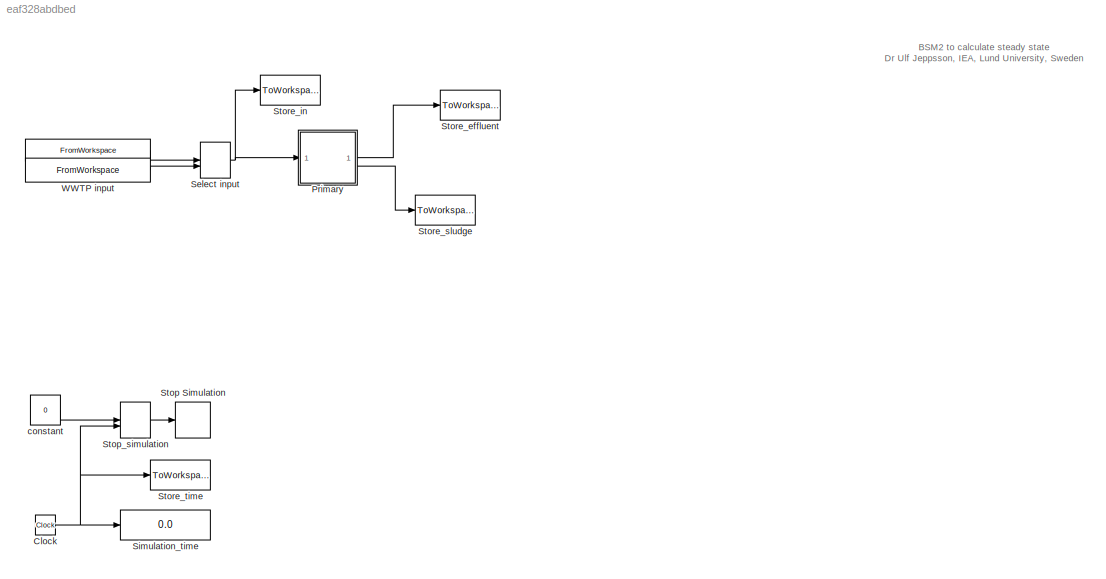
MODEL slx_eaf328abdbed
KIND model
CONFIG AbsTol = 1e-8
CONFIG EnableMultiTasking = off
CONFIG FixedStep = 0.01
CONFIG MaxStep = auto
CONFIG MinStep = auto
CONFIG RelTol = 1e-5
CONFIG SampleTimeConstraint = Unconstrained
CONFIG SolverName = ode15s
CONFIG StartTime = 0.0
CONFIG StopTime = 50
BLOCK [FromWorkspace]  
  OutputAfterFinalValue = Holding final value
  SampleTime = -1
  VariableName = CONSTINFLUENT_BSM2
  ZeroCross = off
BLOCK [Constant]  constant
  Value = 0
BLOCK [Clock] Clock
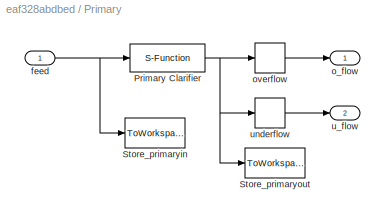
BLOCK [SubSystem] Primary
BLOCK [S-Function] Primary/Primary Clarifier
  EnableBusSupport = off
  FunctionName = primclar_bsm2
  Parameters = XINIT_P,XVEKTOR_P,PAR_P,VOL_P,PAR1,TEMPMODEL
  SFcnIsStateOwnerBlock = off
  SFunctionDeploymentMode = off
BLOCK [ToWorkspace] Primary/Store_primaryin
  MaxDataPoints = inf
  VariableName = primaryin
BLOCK [ToWorkspace] Primary/Store_primaryout
  MaxDataPoints = inf
  VariableName = primaryout
BLOCK [Inport] Primary/feed
BLOCK [Outport] Primary/o_flow
BLOCK [Selector] Primary/overflow
  IndexOptions = Index vector (dialog)
  Indices = [1:21]
  InputPortWidth = 63
  NameLocation = top
  OutputSizes = 1
BLOCK [Outport] Primary/u_flow
  Port = 2
BLOCK [Selector] Primary/underflow
  IndexOptions = Index vector (dialog)
  Indices = [22:42]
  InputPortWidth = 63
  OutputSizes = 1
BLOCK [ManualSwitch] Select input
  CurrentSetting = 0
BLOCK [Display] Simulation_time
  Decimation = 1
BLOCK [Stop] Stop Simulation
BLOCK [ManualSwitch] Stop_simulation
BLOCK [ToWorkspace] Store_effluent
  MaxDataPoints = inf
  VariableName = effluent
BLOCK [ToWorkspace] Store_in
  MaxDataPoints = inf
  VariableName = in
BLOCK [ToWorkspace] Store_sludge
  MaxDataPoints = inf
  VariableName = sludge
BLOCK [ToWorkspace] Store_time
  MaxDataPoints = inf
  VariableName = time
BLOCK [FromWorkspace] WWTP input
  OutputAfterFinalValue = Holding final value
  SampleTime = -1
  VariableName = DYNINFLUENT_BSM2
  ZeroCross = off
ANNOTATION (root): BSM2 to calculate steady state Dr Ulf Jeppsson, IEA, Lund University, Sweden
LINE  :1 -> Select input:1
LINE  constant:1 -> Stop_simulation:1
NET Clock:1 -> Simulation_time:1, Stop_simulation:2, Store_time:1
NET Primary/Primary Clarifier:1 -> Primary/Store_primaryout:1, Primary/overflow:1, Primary/underflow:1
NET Primary/feed:1 -> Primary/Primary Clarifier:1, Primary/Store_primaryin:1
LINE Primary/overflow:1 -> Primary/o_flow:1
LINE Primary/underflow:1 -> Primary/u_flow:1
LINE Primary:1 -> Store_effluent:1
LINE Primary:2 -> Store_sludge:1
NET Select input:1 -> Primary:1, Store_in:1
LINE Stop_simulation:1 -> Stop Simulation:1
LINE WWTP input:1 -> Select input:2
note: NET lines group one-source signal fan-out (src -> all destinations, sorted); 1:1 wires keep LINE
